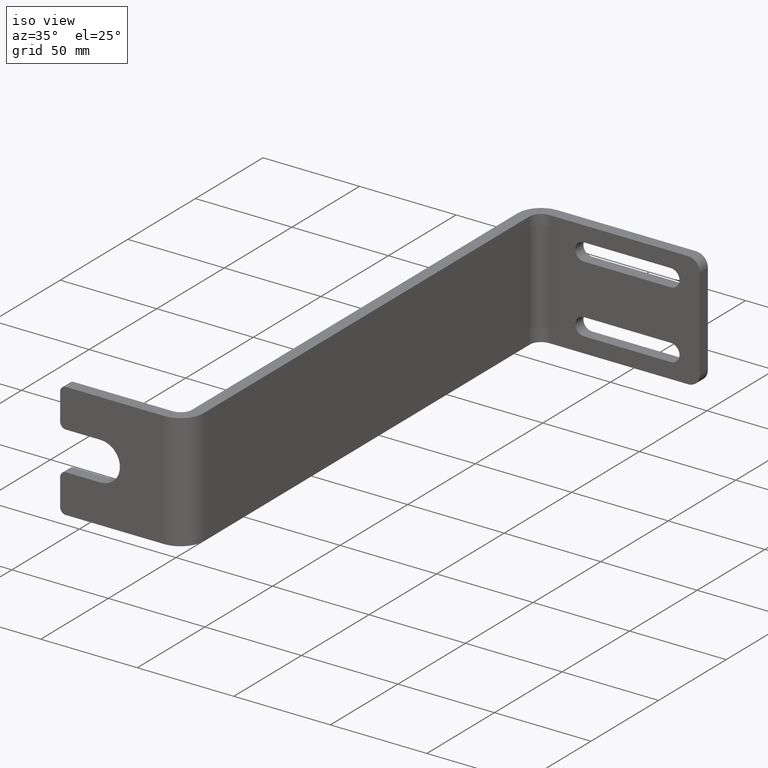
[diagram: clean part render]
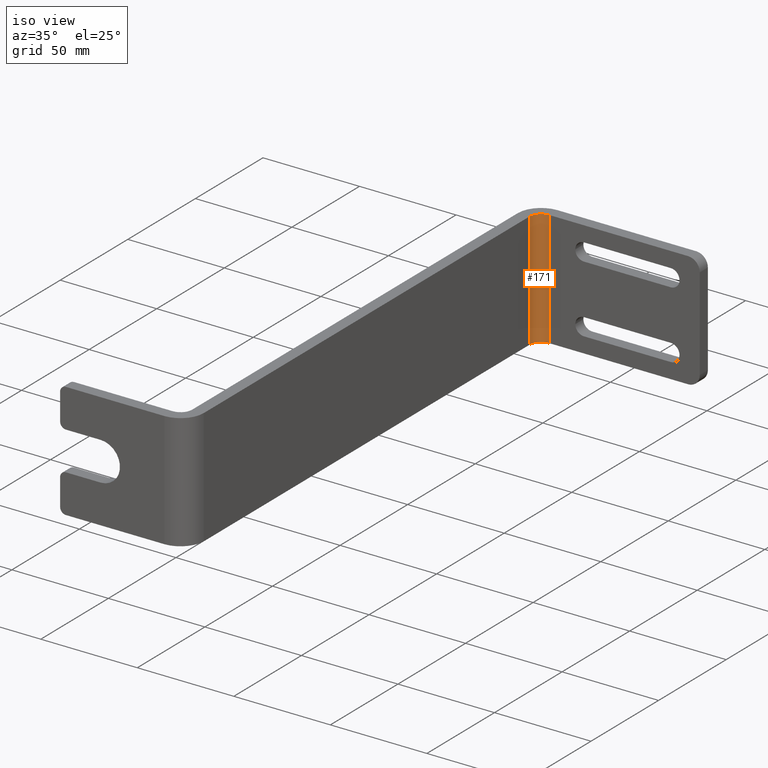
[diagram: same view with one face highlighted and labeled with its STEP entity id]
A machine part, iso view. The second image highlights one B-rep face of the part: STEP entity #171.
In plain terms, the highlighted cylindrical surface (edge-blend (fillet) strip) has radius 6 mm, axis along (0, 0, -1).
Its self-contained STEP definition (entity closure, byte-faithful):
#171=ADVANCED_FACE('EdgeFillet.2',(#463),#464,.F.);
#259=EDGE_CURVE('EdgeFillet.2',#604,#601,#605,.F.);
#269=EDGE_CURVE('EdgeFillet.2',#617,#601,#618,.T.);
#271=EDGE_CURVE('EdgeFillet.2',#620,#617,#621,.F.);
#273=EDGE_CURVE('EdgeFillet.2',#604,#620,#623,.F.);
#463=FACE_OUTER_BOUND('',#847,.T.);
#464=CYLINDRICAL_SURFACE('',#848,6.0);
#601=VERTEX_POINT('',#1004);
#604=VERTEX_POINT('',#1009);
#605=LINE('',#1010,#1011);
#617=VERTEX_POINT('',#1030);
#618=CIRCLE('',#1031,6.0);
#620=VERTEX_POINT('',#1034);
#621=LINE('',#1035,#1036);
#623=CIRCLE('',#1039,6.0);
#847=EDGE_LOOP('',(#1413,#1414,#1415,#1416));
#848=AXIS2_PLACEMENT_3D('',#1417,#1418,#1419);
#1004=CARTESIAN_POINT('',(6.0,253.0,0.0));
#1009=CARTESIAN_POINT('',(6.0,253.0,60.0));
#1010=CARTESIAN_POINT('',(6.0,253.0,30.0));
#1011=VECTOR('',#1742,1.0);
#1030=CARTESIAN_POINT('',(12.0,259.0,0.0));
#1031=AXIS2_PLACEMENT_3D('',#1751,#1752,#1753);
#1034=CARTESIAN_POINT('',(12.0,259.0,60.0));
#1035=CARTESIAN_POINT('',(12.0,259.0,30.0));
#1036=VECTOR('',#1754,1.0);
#1039=AXIS2_PLACEMENT_3D('',#1755,#1756,#1757);
#1413=ORIENTED_EDGE('',*,*,#269,.F.);
#1414=ORIENTED_EDGE('',*,*,#271,.F.);
#1415=ORIENTED_EDGE('',*,*,#273,.F.);
#1416=ORIENTED_EDGE('',*,*,#259,.T.);
#1417=CARTESIAN_POINT('',(12.0,253.0,30.0));
#1418=DIRECTION('',(0.0,0.0,-1.0));
#1419=DIRECTION('',(0.0,1.0,0.0));
#1742=DIRECTION('',(0.0,0.0,1.0));
#1751=CARTESIAN_POINT('',(12.0,253.0,0.0));
#1752=DIRECTION('',(0.0,0.0,1.0));
#1753=DIRECTION('',(1.0,0.0,0.0));
#1754=DIRECTION('',(0.0,0.0,1.0));
#1755=CARTESIAN_POINT('',(12.0,253.0,60.0));
#1756=DIRECTION('',(0.0,0.0,1.0));
#1757=DIRECTION('',(1.0,0.0,0.0));